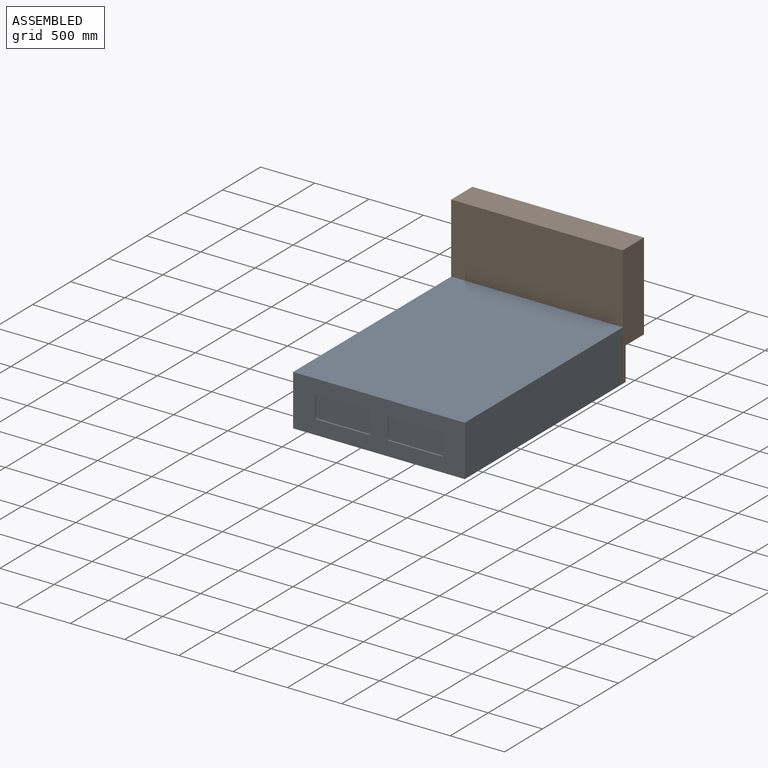
[diagram: assembled view]
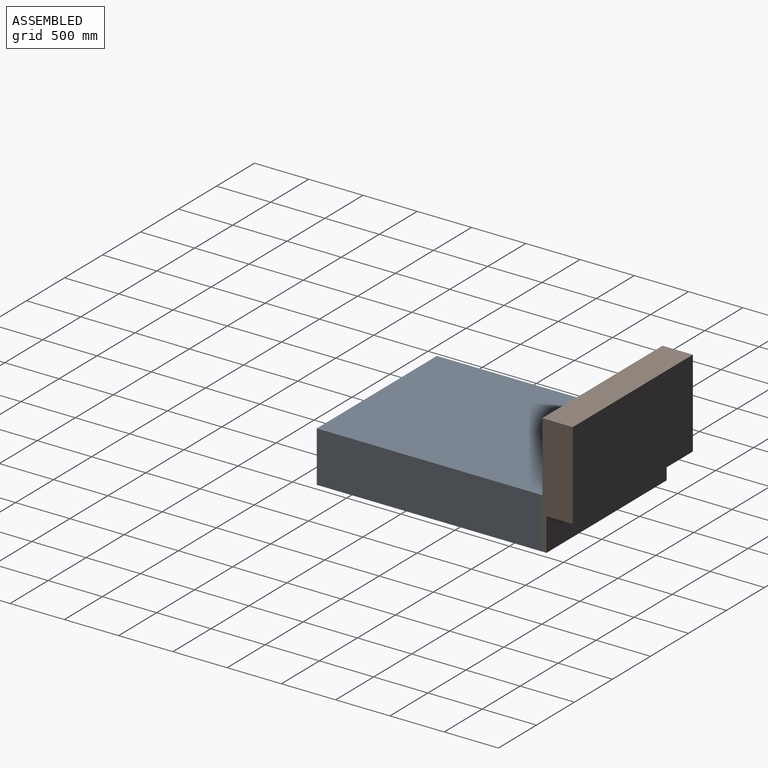
[diagram: assembled view, second angle]
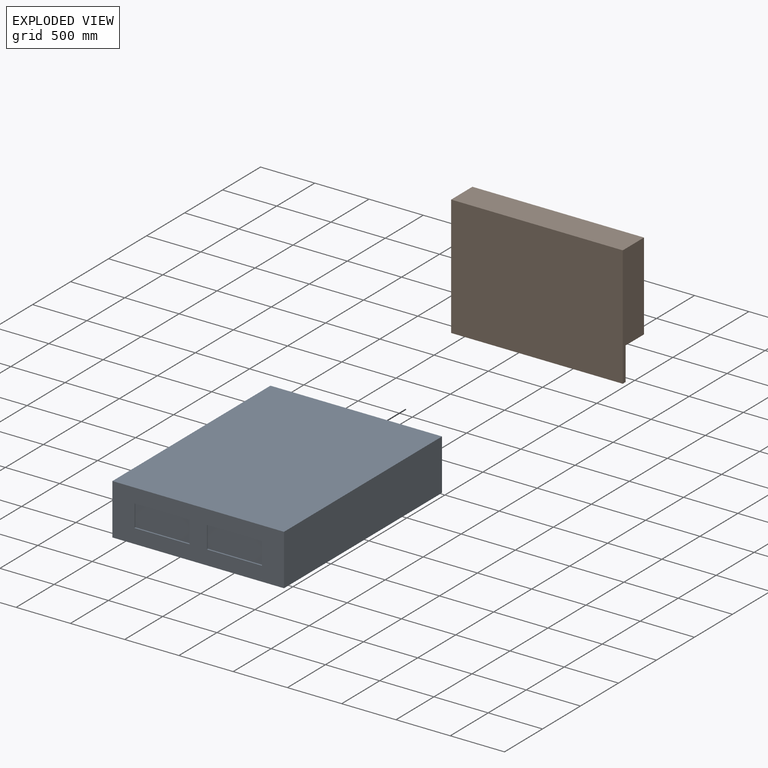
[diagram: exploded view]
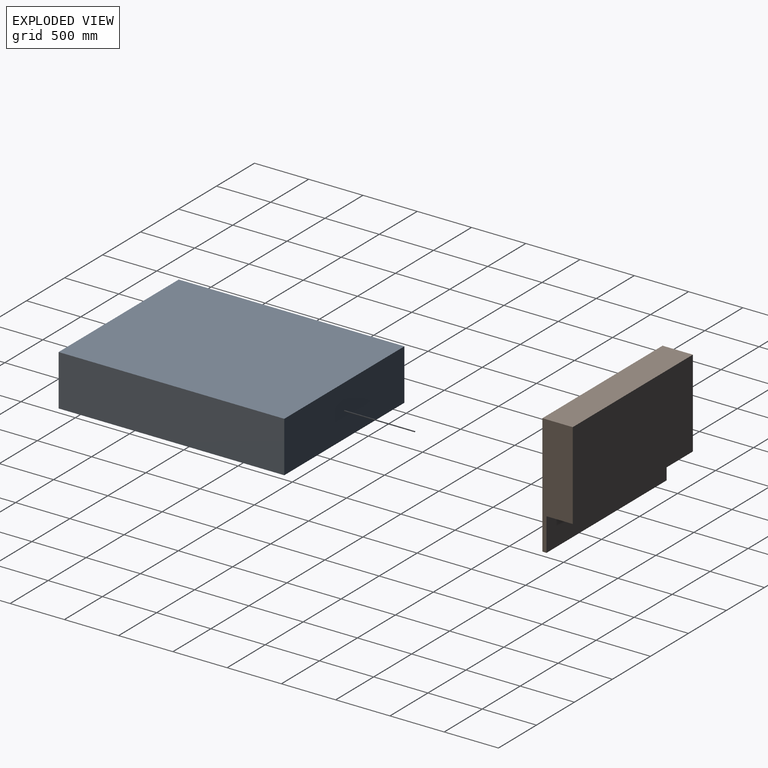
[diagram: exploded view, second angle]
ASSEMBLY  parts=2 mates=3
PART A: 16 faces, bbox 1581.2x2079.6x469.9 mm
  f0: plane 1581.15x469.9mm, normal (0,-1,0), area 536531.2mm2, adj f1,f2,f4,f5,f6,f7,f8,f9
  f1: plane 2079.63x469.9mm, normal (-1,0,0), area 977215.8mm2, adj f0,f3,f4,f5
  f2: plane 2079.63x469.9mm, normal (1,0,0), area 977215.8mm2, adj f0,f3,f4,f5
  f3: plane 1581.15x469.9mm, normal (0,1,0), area 742982.4mm2, adj f1,f2,f4,f5
  f4: plane 2079.63x1581.15mm, normal (0,0,1), area 3288199.1mm2, adj f0,f1,f2,f3
  f5: plane 2079.63x1581.15mm, normal (0,0,-1), area 3288199.1mm2, adj f0,f1,f2,f3
  f6: plane 508x12.7mm, normal (0,0,-1), area 6451.6mm2, adj f0,f7,f9,f10
  f7: plane 203.2x12.7mm, normal (1,0,0), area 2580.6mm2, adj f0,f6,f8,f10
  f8: plane 508x12.7mm, normal (0,0,1), area 6451.6mm2, adj f0,f7,f9,f10
  f9: plane 203.2x12.7mm, normal (-1,0,0), area 2580.6mm2, adj f0,f6,f8,f10
  f10: plane 508x203.2mm, normal (0,-1,0), area 103225.6mm2, adj f6,f7,f8,f9
  f11: plane 508x12.7mm, normal (0,0,-1), area 6451.6mm2, adj f0,f12,f14,f15
  f12: plane 203.2x12.7mm, normal (1,0,0), area 2580.6mm2, adj f0,f11,f13,f15
  f13: plane 508x12.7mm, normal (0,0,1), area 6451.6mm2, adj f0,f12,f14,f15
  f14: plane 203.2x12.7mm, normal (-1,0,0), area 2580.6mm2, adj f0,f11,f13,f15
  f15: plane 508x203.2mm, normal (0,-1,0), area 103225.6mm2, adj f11,f12,f13,f14
PART B: 8 faces, bbox 1581.2x279.4x1111.3 mm
  f0: plane 1581.15x1111.25mm, normal (0,-1,0), area 1757052.9mm2, adj f1,f5,f6,f7
  f1: plane 1581.15x38.1mm, normal (0,0,-1), area 60241.8mm2, adj f0,f2,f6,f7
  f2: plane 1581.15x304.8mm, normal (0,1,0), area 481934.5mm2, adj f1,f3,f6,f7
  f3: plane 1581.15x241.3mm, normal (0,0,-1), area 381531.5mm2, adj f2,f4,f6,f7
  f4: plane 1581.15x806.45mm, normal (0,1,0), area 1275118.4mm2, adj f3,f5,f6,f7
  f5: plane 1581.15x279.4mm, normal (0,0,1), area 441773.3mm2, adj f0,f4,f6,f7
  f6: plane 1111.25x279.4mm, normal (1,0,0), area 236935mm2, adj f0,f1,f2,f3,f4,f5
  f7: plane 1111.25x279.4mm, normal (-1,0,0), area 236935mm2, adj f0,f1,f2,f3,f4,f5
PLACE A t=(-63.93,-1262.9,212.07)mm
PLACE B t=(-63.93,816.73,212.07)mm
MATE planar B.f0 <-> A.f3  axis (0,-1,0) through (726.64,816.73,767.7)mm
MATE planar A.f2 <-> B.f6  axis (1,0,0) through (1517.22,-223.09,447.02)mm
MATE planar B.f1 <-> A.f5  axis (0,0,-1) through (726.64,835.78,212.07)mm
